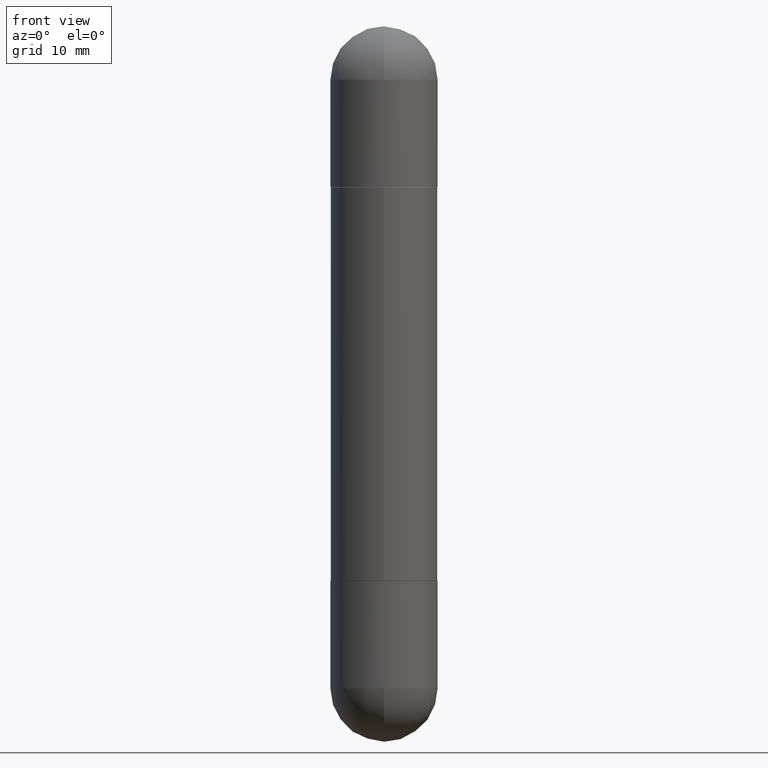
[diagram: clean part render]
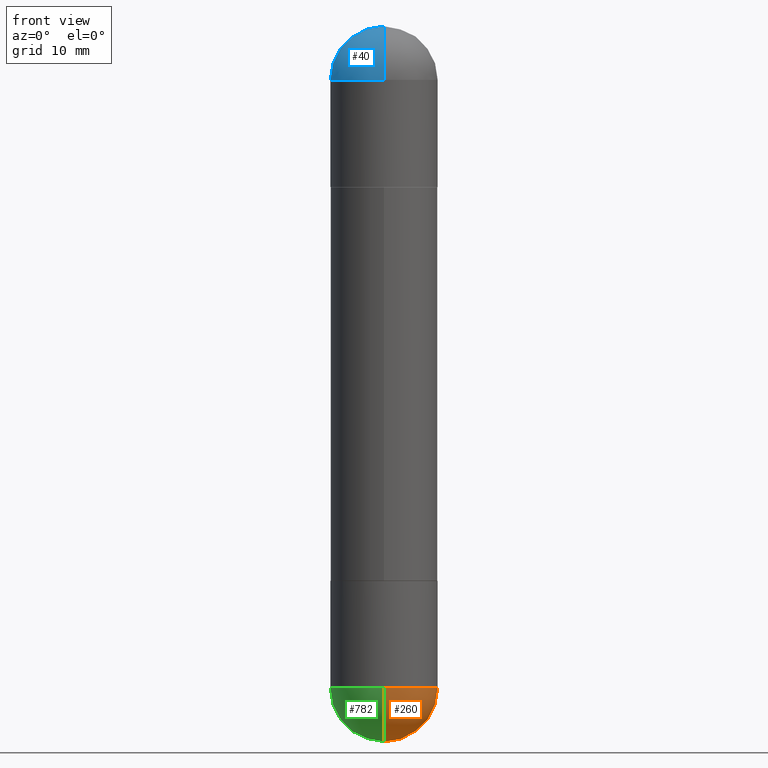
[diagram: same view with three faces highlighted in distinct colors, each labeled with its STEP entity id]
A machine part, front view with three faces highlighted in distinct colors.
Their STEP definitions:

[orange] entity #260 — the highlighted spherical surface has radius 4.7625 mm.
#12 = CARTESIAN_POINT ( 'NONE',  ( 0.1875000000000000555, -8.729576217442571356E-15, -2.312500000000000000 ) ) ;
#16 = EDGE_CURVE ( 'NONE', #294, #729, #804, .T. ) ;
#19 = EDGE_CURVE ( 'NONE', #729, #564, #23, .T. ) ;
#21 = EDGE_LOOP ( 'NONE', ( #152, #735, #812, #608 ) ) ;
#22 = AXIS2_PLACEMENT_3D ( 'NONE', #433, #352, #689 ) ;
#23 = CIRCLE ( 'NONE', #22, 0.1875000000000000555 ) ;
#64 = CARTESIAN_POINT ( 'NONE',  ( 1.309305502066231017E-15, 0.1874999999999918954, -2.312500000000000444 ) ) ;
#75 = SPHERICAL_SURFACE ( 'NONE', #659, 0.1875000000000003331 ) ;
#117 = DIRECTION ( 'NONE',  ( 1.000000000000000000, -6.982962677686270655E-15, 0.000000000000000000 ) ) ;
#152 = ORIENTED_EDGE ( 'NONE', *, *, #259, .F. ) ;
#155 = DIRECTION ( 'NONE',  ( -1.000000000000000000, 7.105427357601001070E-15, -4.926315508542082329E-29 ) ) ;
#241 = AXIS2_PLACEMENT_3D ( 'NONE', #772, #709, #385 ) ;
#259 = EDGE_CURVE ( 'NONE', #739, #294, #578, .T. ) ;
#260 = ADVANCED_FACE ( 'NONE', ( #402 ), #75, .T. ) ;
#265 = CARTESIAN_POINT ( 'NONE',  ( 5.324026836389243254E-29, -8.548232964214825368E-15, -2.312500000000000000 ) ) ;
#272 = AXIS2_PLACEMENT_3D ( 'NONE', #492, #748, #117 ) ;
#273 = DIRECTION ( 'NONE',  ( -7.105427357600999492E-15, -1.000000000000000000, 0.000000000000000000 ) ) ;
#294 = VERTEX_POINT ( 'NONE', #335 ) ;
#335 = CARTESIAN_POINT ( 'NONE',  ( -1.332267629550134009E-15, -0.1875000000000084932, -2.312499999999999556 ) ) ;
#352 = DIRECTION ( 'NONE',  ( -2.445468806185136597E-29, 3.491481338843145583E-15, 1.000000000000000000 ) ) ;
#385 = DIRECTION ( 'NONE',  ( 6.982962677686265922E-15, 1.000000000000000000, 0.000000000000000000 ) ) ;
#402 = FACE_OUTER_BOUND ( 'NONE', #21, .T. ) ;
#433 = CARTESIAN_POINT ( 'NONE',  ( 5.655146614303128380E-29, -8.074050596074775072E-15, -2.312500000000000000 ) ) ;
#447 = CARTESIAN_POINT ( 'NONE',  ( 5.790569421510013204E-29, -9.191404651505909607E-15, -2.500000000000000000 ) ) ;
#492 = CARTESIAN_POINT ( 'NONE',  ( 5.655146614303128380E-29, -8.074050596074775072E-15, -2.312500000000000000 ) ) ;
#564 = VERTEX_POINT ( 'NONE', #64 ) ;
#578 = CIRCLE ( 'NONE', #614, 0.1875000000000003331 ) ;
#608 = ORIENTED_EDGE ( 'NONE', *, *, #16, .F. ) ;
#614 = AXIS2_PLACEMENT_3D ( 'NONE', #716, #155, #273 ) ;
#639 = EDGE_CURVE ( 'NONE', #739, #564, #666, .T. ) ;
#658 = DIRECTION ( 'NONE',  ( -1.000000000000000000, 6.982962677686266711E-15, -4.883557194083113462E-29 ) ) ;
#659 = AXIS2_PLACEMENT_3D ( 'NONE', #265, #658, #663 ) ;
#663 = DIRECTION ( 'NONE',  ( 6.982962677686266711E-15, 1.000000000000000000, -2.913971193241875639E-15 ) ) ;
#666 = CIRCLE ( 'NONE', #241, 0.1875000000000003331 ) ;
#689 = DIRECTION ( 'NONE',  ( 1.000000000000000000, -6.982962677686270655E-15, 0.000000000000000000 ) ) ;
#709 = DIRECTION ( 'NONE',  ( 1.000000000000000000, -6.982962677686265922E-15, 4.883557194083112340E-29 ) ) ;
#716 = CARTESIAN_POINT ( 'NONE',  ( 5.324026836389243254E-29, -8.548232964214825368E-15, -2.312500000000000000 ) ) ;
#729 = VERTEX_POINT ( 'NONE', #12 ) ;
#735 = ORIENTED_EDGE ( 'NONE', *, *, #639, .T. ) ;
#739 = VERTEX_POINT ( 'NONE', #447 ) ;
#748 = DIRECTION ( 'NONE',  ( -2.445468806185136597E-29, 3.491481338843145583E-15, 1.000000000000000000 ) ) ;
#772 = CARTESIAN_POINT ( 'NONE',  ( 5.324026836389243254E-29, -8.548232964214825368E-15, -2.312500000000000000 ) ) ;
#804 = CIRCLE ( 'NONE', #272, 0.1875000000000000555 ) ;
#812 = ORIENTED_EDGE ( 'NONE', *, *, #19, .F. ) ;

[blue] entity #40 — the highlighted spherical surface has radius 4.7625 mm.
#34 = CIRCLE ( 'NONE', #499, 0.1875000000000000555 ) ;
#40 = ADVANCED_FACE ( 'NONE', ( #697 ), #630, .T. ) ;
#55 = CARTESIAN_POINT ( 'NONE',  ( 5.324026836389243254E-29, -8.548232964214825368E-15, -0.1875000000000006661 ) ) ;
#61 = CARTESIAN_POINT ( 'NONE',  ( 5.790569421510013204E-29, -9.191404651505909607E-15, -3.414809992080329023E-16 ) ) ;
#78 = EDGE_CURVE ( 'NONE', #618, #211, #34, .T. ) ;
#88 = AXIS2_PLACEMENT_3D ( 'NONE', #710, #516, #701 ) ;
#127 = CIRCLE ( 'NONE', #220, 0.1875000000000000555 ) ;
#136 = CARTESIAN_POINT ( 'NONE',  ( 1.309305502066231017E-15, 0.1874999999999918954, -0.1875000000000000278 ) ) ;
#183 = CIRCLE ( 'NONE', #699, 0.1875000000000003331 ) ;
#202 = EDGE_CURVE ( 'NONE', #595, #807, #183, .T. ) ;
#205 = AXIS2_PLACEMENT_3D ( 'NONE', #55, #381, #637 ) ;
#211 = VERTEX_POINT ( 'NONE', #587 ) ;
#220 = AXIS2_PLACEMENT_3D ( 'NONE', #545, #556, #811 ) ;
#222 = ORIENTED_EDGE ( 'NONE', *, *, #78, .T. ) ;
#280 = CARTESIAN_POINT ( 'NONE',  ( 5.324026836389243254E-29, -8.548232964214825368E-15, -0.1875000000000006661 ) ) ;
#332 = ORIENTED_EDGE ( 'NONE', *, *, #422, .T. ) ;
#363 = ORIENTED_EDGE ( 'NONE', *, *, #202, .F. ) ;
#381 = DIRECTION ( 'NONE',  ( -1.000000000000000000, 6.982962677686265922E-15, 4.883557194083112340E-29 ) ) ;
#401 = CARTESIAN_POINT ( 'NONE',  ( -1.286343374582108525E-15, -0.1875000000000084932, -0.1875000000000013045 ) ) ;
#422 = EDGE_CURVE ( 'NONE', #211, #807, #127, .T. ) ;
#446 = DIRECTION ( 'NONE',  ( 1.000000000000000000, -6.982962677686270655E-15, 0.000000000000000000 ) ) ;
#456 = DIRECTION ( 'NONE',  ( 6.860497997771530774E-15, 1.000000000000000000, 0.000000000000000000 ) ) ;
#466 = CIRCLE ( 'NONE', #205, 0.1875000000000003331 ) ;
#499 = AXIS2_PLACEMENT_3D ( 'NONE', #575, #692, #446 ) ;
#516 = DIRECTION ( 'NONE',  ( 1.000000000000000000, -6.982962677686266711E-15, -4.883557194083113462E-29 ) ) ;
#538 = DIRECTION ( 'NONE',  ( 1.000000000000000000, -6.860497997771530774E-15, -4.840798879624142912E-29 ) ) ;
#545 = CARTESIAN_POINT ( 'NONE',  ( 5.655146614303128380E-29, -8.074050596074775072E-15, -0.1875000000000006661 ) ) ;
#556 = DIRECTION ( 'NONE',  ( 2.445468806185136597E-29, -3.491481338843145583E-15, 1.000000000000000000 ) ) ;
#575 = CARTESIAN_POINT ( 'NONE',  ( 5.655146614303128380E-29, -8.074050596074775072E-15, -0.1875000000000006661 ) ) ;
#587 = CARTESIAN_POINT ( 'NONE',  ( -0.1875000000000000555, -6.133927340794233391E-15, -0.1875000000000006661 ) ) ;
#595 = VERTEX_POINT ( 'NONE', #61 ) ;
#606 = ORIENTED_EDGE ( 'NONE', *, *, #627, .T. ) ;
#618 = VERTEX_POINT ( 'NONE', #136 ) ;
#627 = EDGE_CURVE ( 'NONE', #595, #618, #466, .T. ) ;
#630 = SPHERICAL_SURFACE ( 'NONE', #88, 0.1875000000000003331 ) ;
#637 = DIRECTION ( 'NONE',  ( -6.982962677686265922E-15, -1.000000000000000000, 0.000000000000000000 ) ) ;
#692 = DIRECTION ( 'NONE',  ( 2.445468806185136597E-29, -3.491481338843145583E-15, 1.000000000000000000 ) ) ;
#697 = FACE_OUTER_BOUND ( 'NONE', #800, .T. ) ;
#699 = AXIS2_PLACEMENT_3D ( 'NONE', #280, #538, #456 ) ;
#701 = DIRECTION ( 'NONE',  ( 6.982962677686266711E-15, 1.000000000000000000, 3.460340791974727494E-15 ) ) ;
#710 = CARTESIAN_POINT ( 'NONE',  ( 5.324026836389243254E-29, -8.548232964214825368E-15, -0.1875000000000006661 ) ) ;
#800 = EDGE_LOOP ( 'NONE', ( #363, #606, #222, #332 ) ) ;
#807 = VERTEX_POINT ( 'NONE', #401 ) ;
#811 = DIRECTION ( 'NONE',  ( 1.000000000000000000, -6.982962677686270655E-15, 0.000000000000000000 ) ) ;

[green] entity #782 — the highlighted spherical surface has radius 4.7625 mm.
#64 = CARTESIAN_POINT ( 'NONE',  ( 1.309305502066231017E-15, 0.1874999999999918954, -2.312500000000000444 ) ) ;
#94 = ORIENTED_EDGE ( 'NONE', *, *, #119, .F. ) ;
#96 = CIRCLE ( 'NONE', #763, 0.1875000000000000555 ) ;
#100 = CIRCLE ( 'NONE', #527, 0.1875000000000000555 ) ;
#119 = EDGE_CURVE ( 'NONE', #564, #278, #100, .T. ) ;
#151 = ORIENTED_EDGE ( 'NONE', *, *, #639, .F. ) ;
#155 = DIRECTION ( 'NONE',  ( -1.000000000000000000, 7.105427357601001070E-15, -4.926315508542082329E-29 ) ) ;
#165 = AXIS2_PLACEMENT_3D ( 'NONE', #450, #326, #204 ) ;
#175 = ORIENTED_EDGE ( 'NONE', *, *, #259, .T. ) ;
#204 = DIRECTION ( 'NONE',  ( 6.982962677686266711E-15, 1.000000000000000000, -2.913971193241875639E-15 ) ) ;
#241 = AXIS2_PLACEMENT_3D ( 'NONE', #772, #709, #385 ) ;
#248 = DIRECTION ( 'NONE',  ( 1.000000000000000000, -6.982962677686270655E-15, 0.000000000000000000 ) ) ;
#258 = FACE_OUTER_BOUND ( 'NONE', #484, .T. ) ;
#259 = EDGE_CURVE ( 'NONE', #739, #294, #578, .T. ) ;
#273 = DIRECTION ( 'NONE',  ( -7.105427357600999492E-15, -1.000000000000000000, 0.000000000000000000 ) ) ;
#278 = VERTEX_POINT ( 'NONE', #396 ) ;
#294 = VERTEX_POINT ( 'NONE', #335 ) ;
#311 = DIRECTION ( 'NONE',  ( 1.000000000000000000, -6.982962677686270655E-15, 0.000000000000000000 ) ) ;
#326 = DIRECTION ( 'NONE',  ( -1.000000000000000000, 6.982962677686266711E-15, -4.883557194083113462E-29 ) ) ;
#335 = CARTESIAN_POINT ( 'NONE',  ( -1.332267629550134009E-15, -0.1875000000000084932, -2.312499999999999556 ) ) ;
#385 = DIRECTION ( 'NONE',  ( 6.982962677686265922E-15, 1.000000000000000000, 0.000000000000000000 ) ) ;
#396 = CARTESIAN_POINT ( 'NONE',  ( -0.1875000000000000555, -6.088003085826207710E-15, -2.312500000000000000 ) ) ;
#447 = CARTESIAN_POINT ( 'NONE',  ( 5.790569421510013204E-29, -9.191404651505909607E-15, -2.500000000000000000 ) ) ;
#448 = CARTESIAN_POINT ( 'NONE',  ( 5.655146614303128380E-29, -8.074050596074775072E-15, -2.312500000000000000 ) ) ;
#450 = CARTESIAN_POINT ( 'NONE',  ( 5.324026836389243254E-29, -8.548232964214825368E-15, -2.312500000000000000 ) ) ;
#484 = EDGE_LOOP ( 'NONE', ( #151, #175, #678, #94 ) ) ;
#502 = CARTESIAN_POINT ( 'NONE',  ( 5.655146614303128380E-29, -8.074050596074775072E-15, -2.312500000000000000 ) ) ;
#527 = AXIS2_PLACEMENT_3D ( 'NONE', #502, #569, #248 ) ;
#564 = VERTEX_POINT ( 'NONE', #64 ) ;
#569 = DIRECTION ( 'NONE',  ( -2.445468806185136597E-29, 3.491481338843145583E-15, 1.000000000000000000 ) ) ;
#573 = DIRECTION ( 'NONE',  ( -2.445468806185136597E-29, 3.491481338843145583E-15, 1.000000000000000000 ) ) ;
#578 = CIRCLE ( 'NONE', #614, 0.1875000000000003331 ) ;
#603 = EDGE_CURVE ( 'NONE', #278, #294, #96, .T. ) ;
#614 = AXIS2_PLACEMENT_3D ( 'NONE', #716, #155, #273 ) ;
#639 = EDGE_CURVE ( 'NONE', #739, #564, #666, .T. ) ;
#666 = CIRCLE ( 'NONE', #241, 0.1875000000000003331 ) ;
#678 = ORIENTED_EDGE ( 'NONE', *, *, #603, .F. ) ;
#709 = DIRECTION ( 'NONE',  ( 1.000000000000000000, -6.982962677686265922E-15, 4.883557194083112340E-29 ) ) ;
#716 = CARTESIAN_POINT ( 'NONE',  ( 5.324026836389243254E-29, -8.548232964214825368E-15, -2.312500000000000000 ) ) ;
#739 = VERTEX_POINT ( 'NONE', #447 ) ;
#763 = AXIS2_PLACEMENT_3D ( 'NONE', #448, #573, #311 ) ;
#772 = CARTESIAN_POINT ( 'NONE',  ( 5.324026836389243254E-29, -8.548232964214825368E-15, -2.312500000000000000 ) ) ;
#774 = SPHERICAL_SURFACE ( 'NONE', #165, 0.1875000000000003331 ) ;
#782 = ADVANCED_FACE ( 'NONE', ( #258 ), #774, .T. ) ;